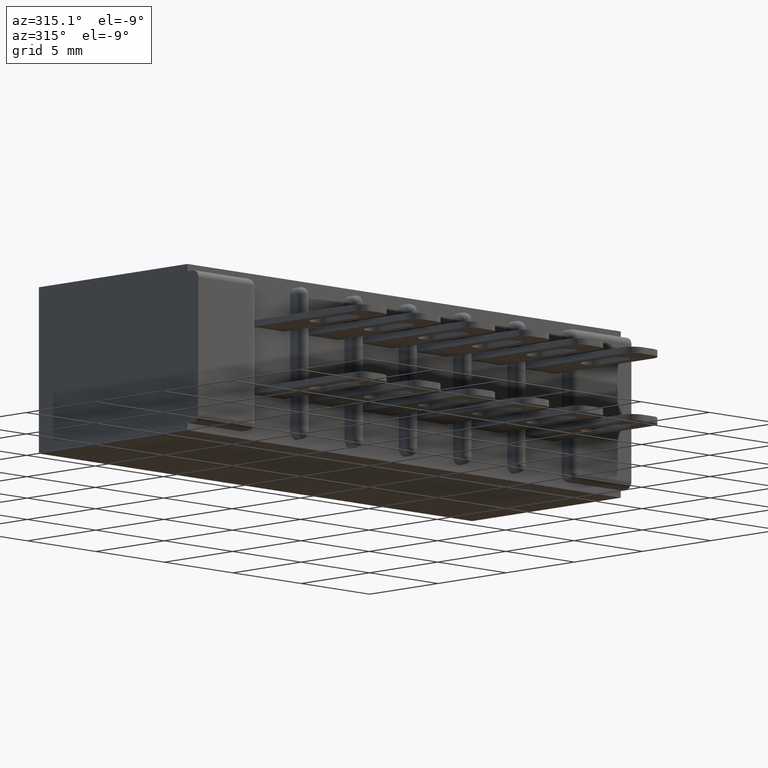
[diagram: clean part render]
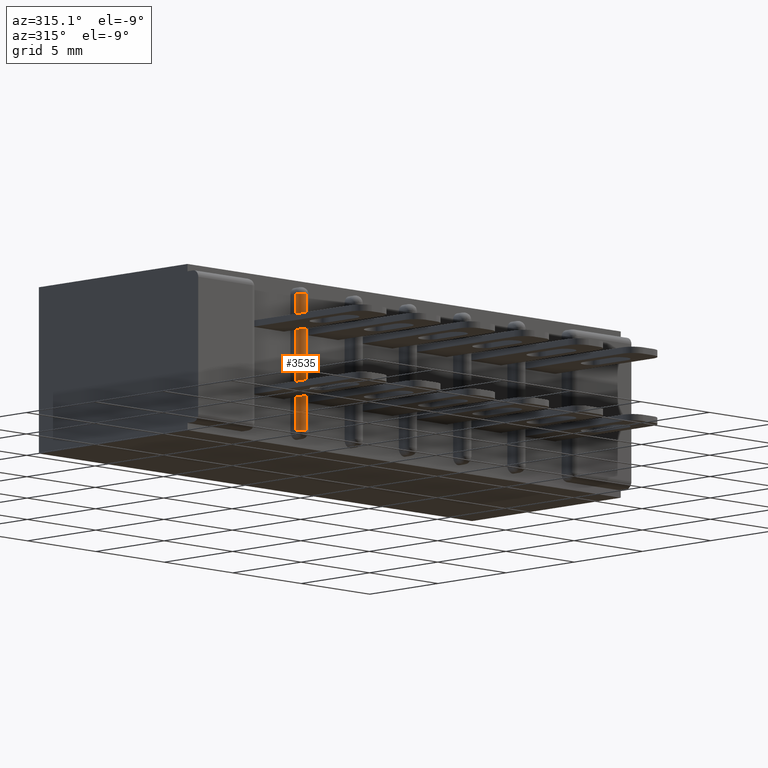
[diagram: same view with one face highlighted and labeled with its STEP entity id]
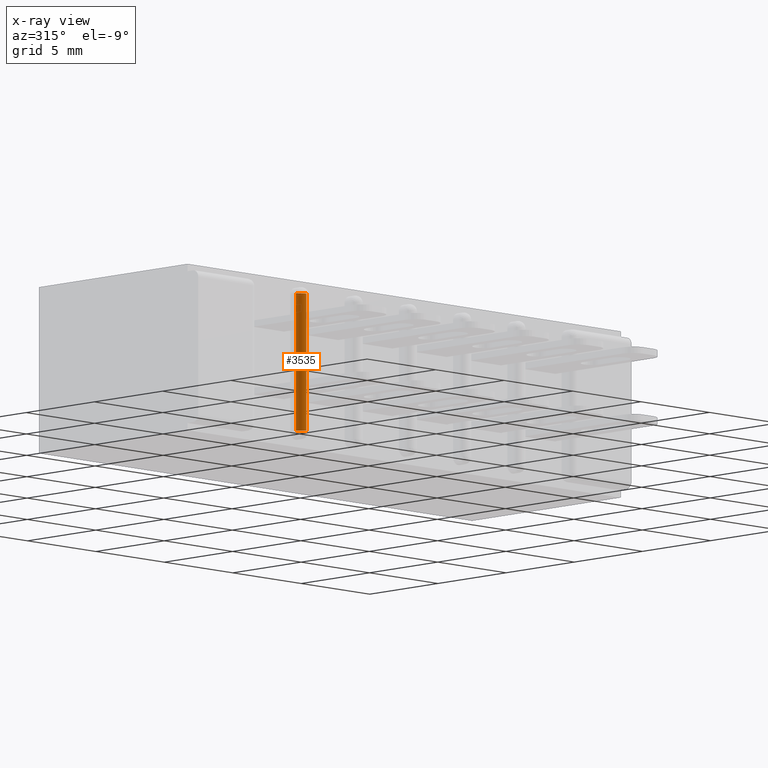
[diagram: x-ray of the same camera — body ghosted, the highlighted face saturated]
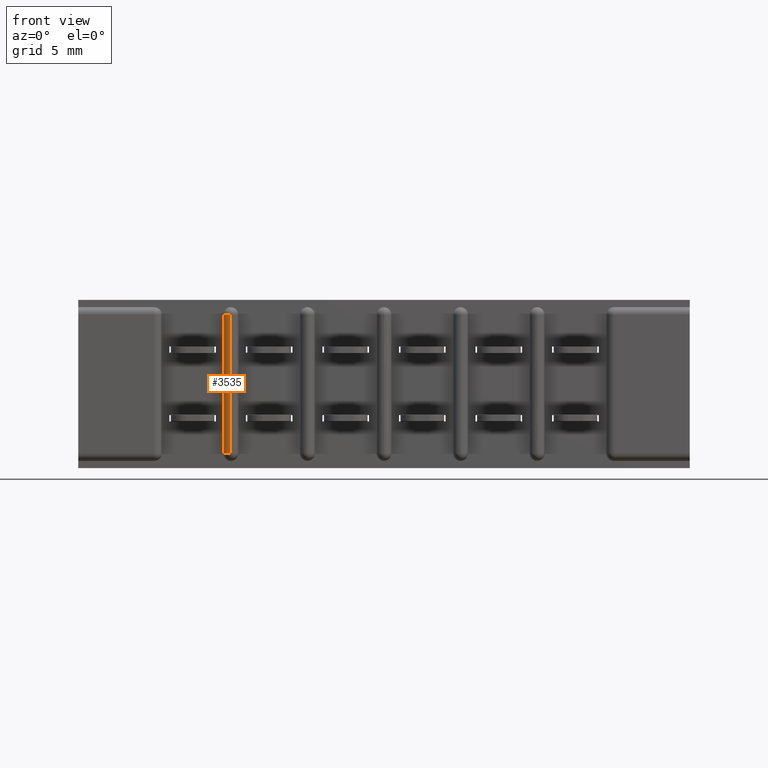
[diagram: same view with one face highlighted and labeled with its STEP entity id]
A machine part, auxiliary view. The second image highlights one B-rep face of the part: STEP entity #3535.
The next image is the same camera in x-ray: the body ghosted, the highlighted face saturated — about 1% of this face is hidden behind the body in this view.
A second angle (front view) of the same face is appended — the face is thin or edge-on in the first view.
In plain terms, the highlighted cylindrical surface (edge-blend (fillet) strip) has radius 0.381 mm, axis along (-0, 0, -1).
Its self-contained STEP definition (entity closure, byte-faithful):
#87 = VERTEX_POINT ( 'NONE', #4117 ) ;
#163 = VERTEX_POINT ( 'NONE', #2936 ) ;
#192 = AXIS2_PLACEMENT_3D ( 'NONE', #8152, #4911, #5593 ) ;
#500 = FACE_OUTER_BOUND ( 'NONE', #3820, .T. ) ;
#639 = VERTEX_POINT ( 'NONE', #5383 ) ;
#745 = AXIS2_PLACEMENT_3D ( 'NONE', #851, #6549, #2621 ) ;
#832 = CARTESIAN_POINT ( 'NONE',  ( 0.5940000000000029700, 0.01499999999999997700, -0.02999999999999995000 ) ) ;
#851 = CARTESIAN_POINT ( 'NONE',  ( 0.6090000000000028700, 0.01499999999999999900, -0.3130000000000000600 ) ) ;
#1279 = CYLINDRICAL_SURFACE ( 'NONE', #7344, 0.01499999999999997700 ) ;
#1374 = ORIENTED_EDGE ( 'NONE', *, *, #5356, .T. ) ;
#1690 = DIRECTION ( 'NONE',  ( -1.507642380609413700E-016, 0.0000000000000000000, -1.000000000000000000 ) ) ;
#2103 = EDGE_CURVE ( 'NONE', #163, #639, #3503, .T. ) ;
#2621 = DIRECTION ( 'NONE',  ( -1.000000000000000000, 0.0000000000000000000, 0.0000000000000000000 ) ) ;
#2825 = LINE ( 'NONE', #7991, #8239 ) ;
#2936 = CARTESIAN_POINT ( 'NONE',  ( 0.6090000000000027600, 0.0000000000000000000, -0.3130000000000000600 ) ) ;
#3149 = ORIENTED_EDGE ( 'NONE', *, *, #3960, .F. ) ;
#3354 = DIRECTION ( 'NONE',  ( -1.000000000000000000, 0.0000000000000000000, 0.0000000000000000000 ) ) ;
#3503 = CIRCLE ( 'NONE', #745, 0.01499999999999997700 ) ;
#3535 = ADVANCED_FACE ( 'NONE', ( #500 ), #1279, .T. ) ;
#3681 = EDGE_CURVE ( 'NONE', #87, #163, #2825, .T. ) ;
#3820 = EDGE_LOOP ( 'NONE', ( #8394, #5927, #1374, #3149 ) ) ;
#3960 = EDGE_CURVE ( 'NONE', #639, #4357, #6508, .T. ) ;
#4117 = CARTESIAN_POINT ( 'NONE',  ( 0.6090000000000028700, 0.0000000000000000000, -0.02999999999999995400 ) ) ;
#4357 = VERTEX_POINT ( 'NONE', #832 ) ;
#4911 = DIRECTION ( 'NONE',  ( -2.845674993400278400E-016, -0.0000000000000000000, -1.000000000000000000 ) ) ;
#5356 = EDGE_CURVE ( 'NONE', #87, #4357, #6224, .T. ) ;
#5383 = CARTESIAN_POINT ( 'NONE',  ( 0.5940000000000028600, 0.01499999999999997700, -0.3130000000000000600 ) ) ;
#5499 = VECTOR ( 'NONE', #10181, 39.37007874015748100 ) ;
#5593 = DIRECTION ( 'NONE',  ( -1.000000000000000000, 0.0000000000000000000, 2.845674993400278400E-016 ) ) ;
#5927 = ORIENTED_EDGE ( 'NONE', *, *, #3681, .F. ) ;
#6224 = CIRCLE ( 'NONE', #192, 0.01499999999999997700 ) ;
#6508 = LINE ( 'NONE', #10251, #5499 ) ;
#6549 = DIRECTION ( 'NONE',  ( 0.0000000000000000000, -0.0000000000000000000, -1.000000000000000000 ) ) ;
#7344 = AXIS2_PLACEMENT_3D ( 'NONE', #8264, #1690, #3354 ) ;
#7907 = DIRECTION ( 'NONE',  ( -1.507642380609413700E-016, -0.0000000000000000000, -1.000000000000000000 ) ) ;
#7991 = CARTESIAN_POINT ( 'NONE',  ( 0.6090000000000028700, 0.0000000000000000000, -0.3130000000000000600 ) ) ;
#8152 = CARTESIAN_POINT ( 'NONE',  ( 0.6090000000000028700, 0.01499999999999999900, -0.02999999999999995400 ) ) ;
#8239 = VECTOR ( 'NONE', #7907, 39.37007874015748100 ) ;
#8264 = CARTESIAN_POINT ( 'NONE',  ( 0.6090000000000028700, 0.01499999999999997700, -0.4680000000000008600 ) ) ;
#8394 = ORIENTED_EDGE ( 'NONE', *, *, #2103, .F. ) ;
#10181 = DIRECTION ( 'NONE',  ( 1.507642380609413700E-016, 0.0000000000000000000, 1.000000000000000000 ) ) ;
#10251 = CARTESIAN_POINT ( 'NONE',  ( 0.5940000000000029700, 0.01499999999999997700, -0.02999999999999995000 ) ) ;